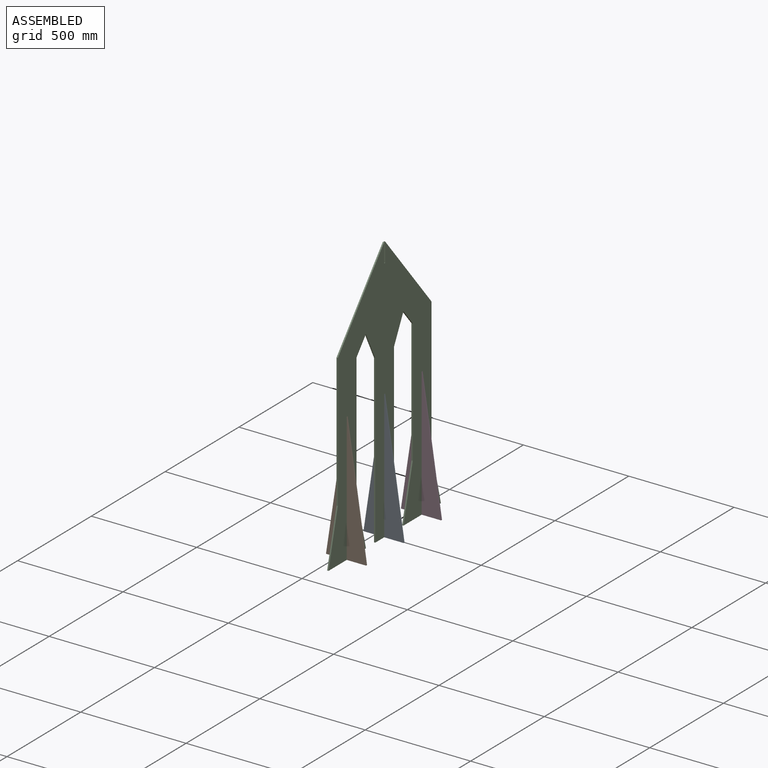
[diagram: assembled view]
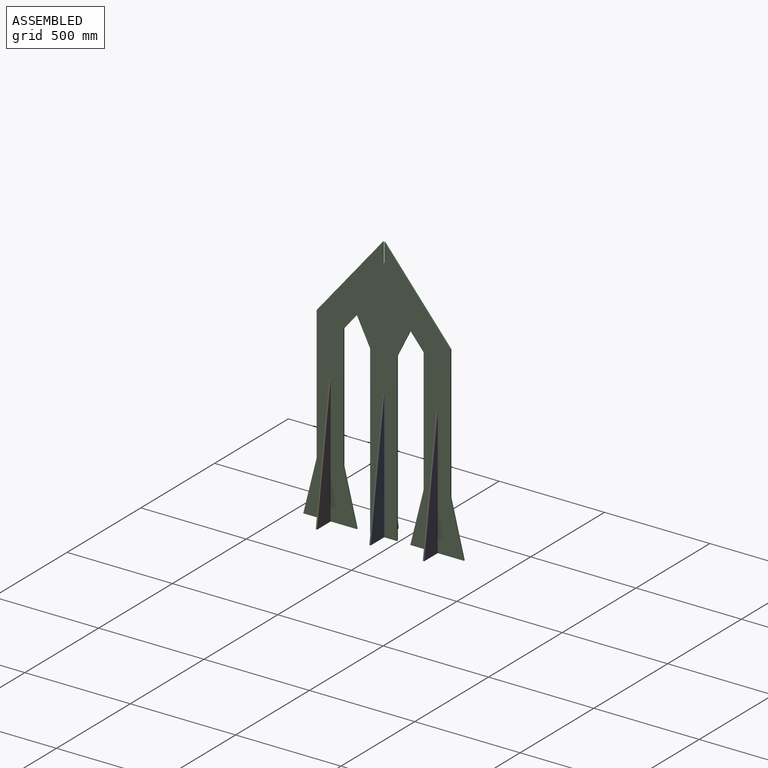
[diagram: assembled view, second angle]
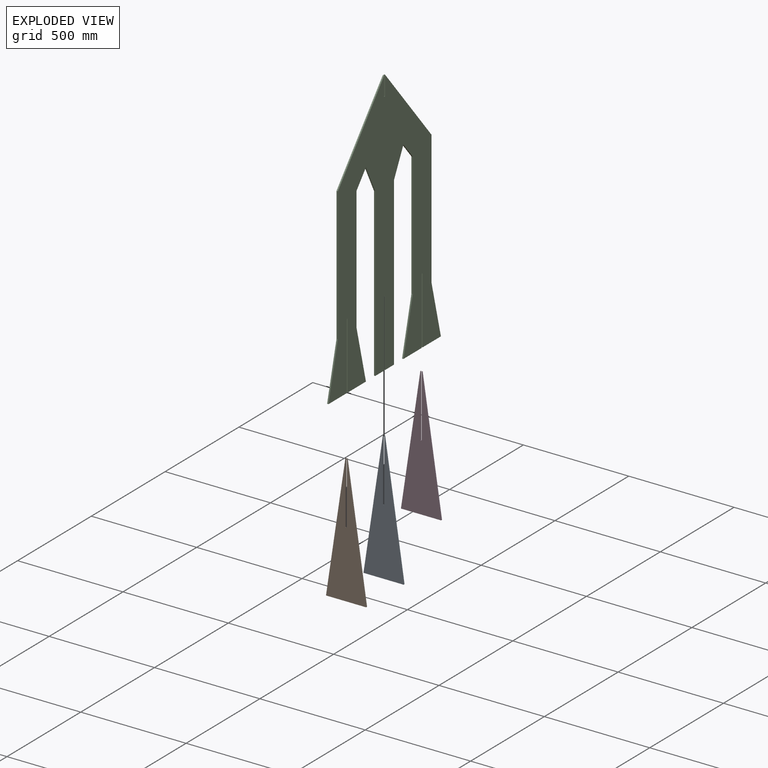
[diagram: exploded view]
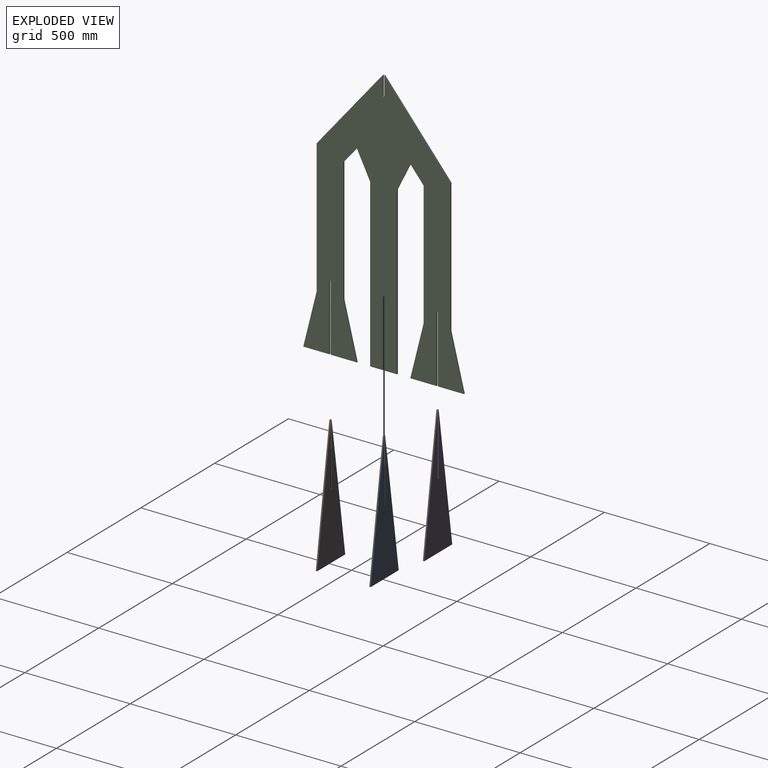
[diagram: exploded view, second angle]
ASSEMBLY  parts=4 mates=3
PART A: 8 faces, bbox 190.5x6.4x613.8 mm
  f0: plane 613.83x92.08mm, normal (-0.99,0,0.15), area 3941.4mm2, adj f1,f5,f6,f7
  f1: plane 190.5x6.35mm, normal (0,0,-1), area 1209.7mm2, adj f0,f2,f6,f7
  f2: plane 613.83x92.08mm, normal (0.99,0,0.15), area 3941.4mm2, adj f1,f3,f6,f7
  f3: plane 296.33x6.35mm, normal (-1,0,0), area 1881.7mm2, adj f2,f4,f6,f7
  f4: plane 6.35x6.35mm, normal (0,0,1), area 40.3mm2, adj f3,f5,f6,f7
  f5: plane 296.33x6.35mm, normal (1,0,0), area 1881.7mm2, adj f0,f4,f6,f7
  f6: plane 613.83x190.5mm, normal (0,-1,0), area 58534.8mm2, adj f0,f1,f2,f3,f4,f5
  f7: plane 613.83x190.5mm, normal (0,1,0), area 58534.8mm2, adj f0,f1,f2,f3,f4,f5
PART B: same geometry as A
PART C: 36 faces, bbox 762x6.4x1266.2 mm
  f0: plane 60.33x6.35mm, normal (0,0,-1), area 383.1mm2, adj f4,f5,f8,f29
  f1: plane 123.83x6.35mm, normal (0,0,-1), area 786.3mm2, adj f4,f5,f14,f32
  f2: plane 377.19x314.33mm, normal (-0.77,0,0.64), area 3117.8mm2, adj f4,f5,f19,f26
  f3: plane 123.83x6.35mm, normal (0,0,-1), area 786.3mm2, adj f4,f5,f20,f34
  f4: plane 1266.19x762mm, normal (0,-1,0), area 490520.8mm2, adj f0,f1,f2,f3,f6,f7,f8,f9
  f5: plane 1266.19x762mm, normal (0,1,0), area 490520.8mm2, adj f0,f1,f2,f3,f6,f7,f8,f9
  f6: plane 76.2x63.5mm, normal (0.77,0,-0.64), area 629.9mm2, adj f4,f5,f7,f23
  f7: plane 127x63.5mm, normal (-0.89,0,-0.45), area 901.6mm2, adj f4,f5,f6,f8
  f8: plane 792.22x6.35mm, normal (-1,0,0), area 5030.6mm2, adj f0,f4,f5,f7
  f9: plane 60.33x6.35mm, normal (0,0,-1), area 383.1mm2, adj f4,f5,f10,f27
  f10: plane 792.22x6.35mm, normal (1,0,0), area 5030.6mm2, adj f4,f5,f9,f11
  f11: plane 127x63.5mm, normal (0.89,0,-0.45), area 901.6mm2, adj f4,f5,f10,f12
  f12: plane 76.2x63.5mm, normal (-0.77,0,-0.64), area 629.9mm2, adj f4,f5,f11,f13
  f13: plane 589.02x6.35mm, normal (-1,0,0), area 3740.3mm2, adj f4,f5,f12,f14
  f14: plane 254x63.5mm, normal (-0.97,0,0.24), area 1662.5mm2, adj f1,f4,f5,f13
  f15: plane 123.83x6.35mm, normal (0,0,-1), area 786.3mm2, adj f4,f5,f16,f30
  f16: plane 254x63.5mm, normal (0.97,0,0.24), area 1662.5mm2, adj f4,f5,f15,f17
  f17: plane 635x6.35mm, normal (1,0,0), area 4032.3mm2, adj f4,f5,f16,f18
  f18: plane 377.19x314.33mm, normal (0.77,0,0.64), area 3117.8mm2, adj f4,f5,f17,f25
  f19: plane 635x6.35mm, normal (-1,0,0), area 4032.3mm2, adj f2,f4,f5,f20
  f20: plane 254x63.5mm, normal (-0.97,0,0.24), area 1662.5mm2, adj f3,f4,f5,f19
  f21: plane 123.83x6.35mm, normal (0,0,-1), area 786.3mm2, adj f4,f5,f22,f35
  f22: plane 254x63.5mm, normal (0.97,0,0.24), area 1662.5mm2, adj f4,f5,f21,f23
  f23: plane 589.02x6.35mm, normal (1,0,0), area 3740.3mm2, adj f4,f5,f6,f22
  f24: plane 6.35x6.35mm, normal (0,0,1), area 40.3mm2, adj f4,f5,f25,f26
  f25: plane 91.44x6.35mm, normal (-1,0,0), area 580.6mm2, adj f4,f5,f18,f24
  f26: plane 91.44x6.35mm, normal (1,0,0), area 580.6mm2, adj f2,f4,f5,f24
  f27: plane 317.5x6.35mm, normal (-1,0,0), area 2016.1mm2, adj f4,f5,f9,f28
  f28: plane 6.35x6.35mm, normal (0,0,-1), area 40.3mm2, adj f4,f5,f27,f29
  f29: plane 317.5x6.35mm, normal (1,0,0), area 2016.1mm2, adj f0,f4,f5,f28
  f30: plane 317.5x6.35mm, normal (-1,0,0), area 2016.1mm2, adj f4,f5,f15,f31
  f31: plane 6.35x6.35mm, normal (0,0,-1), area 40.3mm2, adj f4,f5,f30,f32
  f32: plane 317.5x6.35mm, normal (1,0,0), area 2016.1mm2, adj f1,f4,f5,f31
  f33: plane 6.35x6.35mm, normal (0,0,-1), area 40.3mm2, adj f4,f5,f34,f35
  f34: plane 317.5x6.35mm, normal (1,0,0), area 2016.1mm2, adj f3,f4,f5,f33
  f35: plane 317.5x6.35mm, normal (-1,0,0), area 2016.1mm2, adj f4,f5,f21,f33
PART D: same geometry as A
PLACE A t=(-606.63,-717.11,-449.46)mm
PLACE B t=(-606.63,-971.11,-449.46)mm
PLACE C rot(axis=(0,0,1),90deg) t=(-604.73,-720.29,378.89)mm
PLACE D rot(axis=(0,0,1),180deg) t=(-606.63,-469.46,-449.46)mm
MATE fastened C.f28 <-> A.f4  axis (0,0,-1) through (-606.63,-720.29,-449.49)mm
MATE fastened B.f4 <-> C.f33  axis (0,0,1) through (-606.63,-974.29,-449.49)mm
MATE fastened D.f4 <-> C.f31  axis (0,0,1) through (-606.63,-466.29,-449.49)mm
